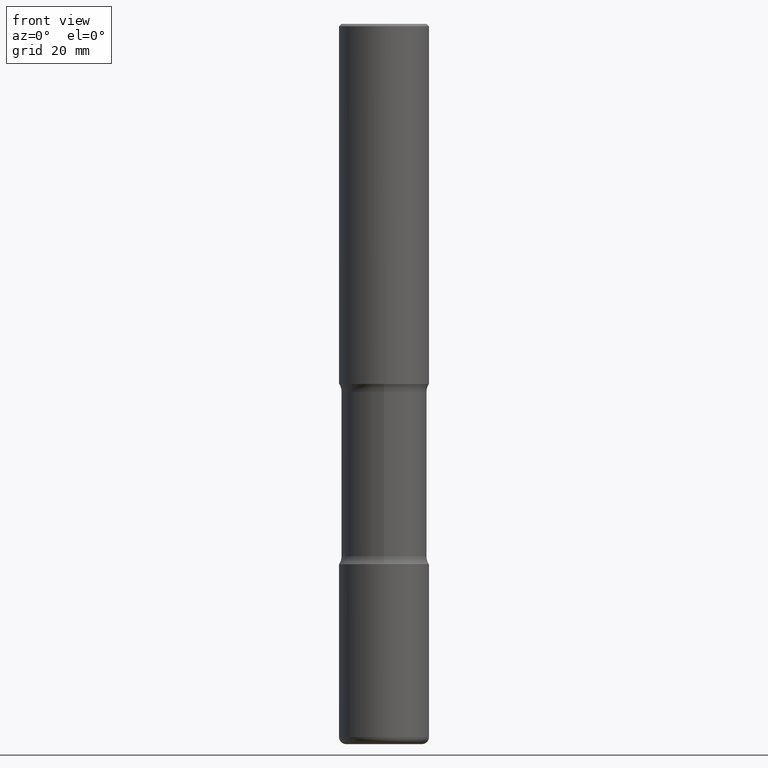
[diagram: clean part render]
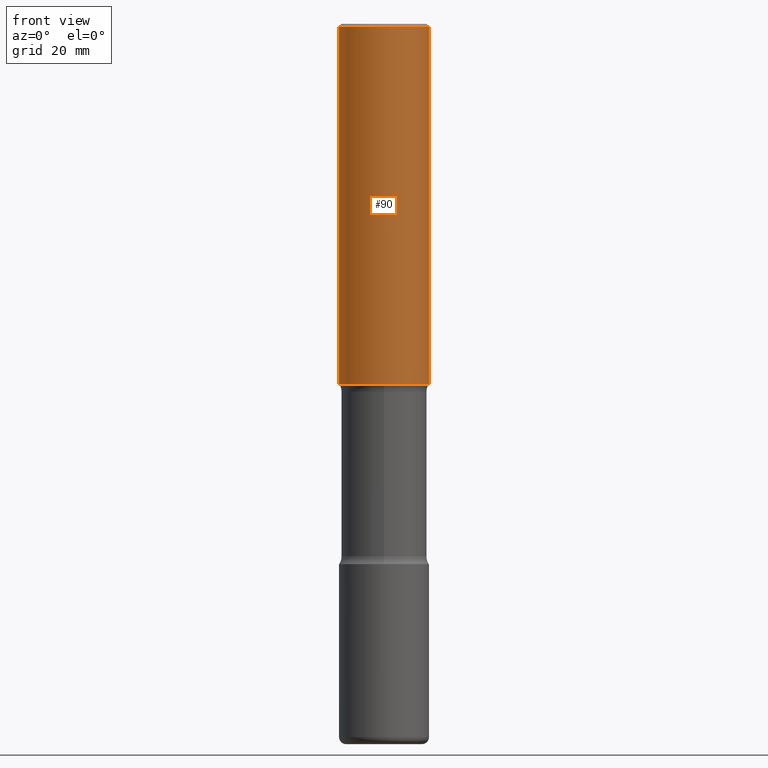
[diagram: same view with one face highlighted and labeled with its STEP entity id]
A machine part, front view. The second image highlights one B-rep face of the part: STEP entity #90.
In plain terms, the highlighted cylindrical surface (partial cylindrical patch) has radius 9.525 mm, axis along (-0, 0, 1).
Its self-contained STEP definition (entity closure, byte-faithful):
#8 = EDGE_LOOP ( 'NONE', ( #257, #548, #385, #527 ) ) ;
#26 = CARTESIAN_POINT ( 'NONE',  ( 7.336406418555407548E-29, -1.047444401652943320E-14, -2.999999999999999112 ) ) ;
#35 = DIRECTION ( 'NONE',  ( -2.445468806185136597E-29, 3.491481338843145583E-15, 1.000000000000000000 ) ) ;
#36 = EDGE_CURVE ( 'NONE', #400, #141, #461, .T. ) ;
#48 = CARTESIAN_POINT ( 'NONE',  ( -0.3750000000000003886, -2.607601562552767029E-15, -2.999999999999999112 ) ) ;
#52 = CIRCLE ( 'NONE', #187, 0.3750000000000001110 ) ;
#71 = DIRECTION ( 'NONE',  ( -2.445468806185136877E-29, 3.491481338843145188E-15, 1.000000000000000000 ) ) ;
#90 = ADVANCED_FACE ( 'NONE', ( #133 ), #386, .T. ) ;
#119 = CARTESIAN_POINT ( 'NONE',  ( -0.3750000000000002220, 2.664535259100377275E-15, -1.844600658845590719E-29 ) ) ;
#133 = FACE_OUTER_BOUND ( 'NONE', #8, .T. ) ;
#141 = VERTEX_POINT ( 'NONE', #442 ) ;
#180 = VERTEX_POINT ( 'NONE', #298 ) ;
#187 = AXIS2_PLACEMENT_3D ( 'NONE', #538, #191, #259 ) ;
#191 = DIRECTION ( 'NONE',  ( -2.445468806185136597E-29, 3.491481338843145583E-15, 1.000000000000000000 ) ) ;
#217 = AXIS2_PLACEMENT_3D ( 'NONE', #26, #239, #281 ) ;
#228 = VECTOR ( 'NONE', #71, 39.37007874015748143 ) ;
#238 = CARTESIAN_POINT ( 'NONE',  ( 0.3750000000000002220, -2.618611004132351594E-15, 1.828566290923477043E-29 ) ) ;
#239 = DIRECTION ( 'NONE',  ( -2.445468806185136597E-29, 3.491481338843145583E-15, 1.000000000000000000 ) ) ;
#257 = ORIENTED_EDGE ( 'NONE', *, *, #354, .F. ) ;
#259 = DIRECTION ( 'NONE',  ( 1.000000000000000000, -6.982962677686265922E-15, 0.000000000000000000 ) ) ;
#281 = DIRECTION ( 'NONE',  ( 1.000000000000000000, -6.982962677686265922E-15, 0.000000000000000000 ) ) ;
#298 = CARTESIAN_POINT ( 'NONE',  ( -0.3750000000000001110, 2.548781377355487113E-15, -0.02000000000000006981 ) ) ;
#326 = CARTESIAN_POINT ( 'NONE',  ( 0.3750000000000001110, -2.642516375941188423E-15, -0.02000000000000006981 ) ) ;
#338 = CARTESIAN_POINT ( 'NONE',  ( 0.000000000000000000, 0.000000000000000000, 0.000000000000000000 ) ) ;
#347 = AXIS2_PLACEMENT_3D ( 'NONE', #338, #35, #481 ) ;
#349 = LINE ( 'NONE', #238, #521 ) ;
#354 = EDGE_CURVE ( 'NONE', #400, #180, #469, .T. ) ;
#367 = VERTEX_POINT ( 'NONE', #326 ) ;
#385 = ORIENTED_EDGE ( 'NONE', *, *, #558, .T. ) ;
#386 = CYLINDRICAL_SURFACE ( 'NONE', #347, 0.3750000000000002220 ) ;
#400 = VERTEX_POINT ( 'NONE', #48 ) ;
#402 = EDGE_CURVE ( 'NONE', #180, #367, #52, .T. ) ;
#442 = CARTESIAN_POINT ( 'NONE',  ( 0.3750000000000003886, -1.309305502066178637E-14, -2.999999999999999112 ) ) ;
#461 = CIRCLE ( 'NONE', #217, 0.3750000000000003886 ) ;
#469 = LINE ( 'NONE', #119, #228 ) ;
#481 = DIRECTION ( 'NONE',  ( 1.000000000000000000, -6.982962677686266711E-15, 4.876176775795935793E-29 ) ) ;
#495 = DIRECTION ( 'NONE',  ( -2.445468806185136877E-29, 3.491481338843145188E-15, 1.000000000000000000 ) ) ;
#521 = VECTOR ( 'NONE', #495, 39.37007874015748143 ) ;
#527 = ORIENTED_EDGE ( 'NONE', *, *, #402, .F. ) ;
#538 = CARTESIAN_POINT ( 'NONE',  ( 4.890937612370289799E-31, -6.982962677686315028E-17, -0.02000000000000006981 ) ) ;
#548 = ORIENTED_EDGE ( 'NONE', *, *, #36, .T. ) ;
#558 = EDGE_CURVE ( 'NONE', #141, #367, #349, .T. ) ;